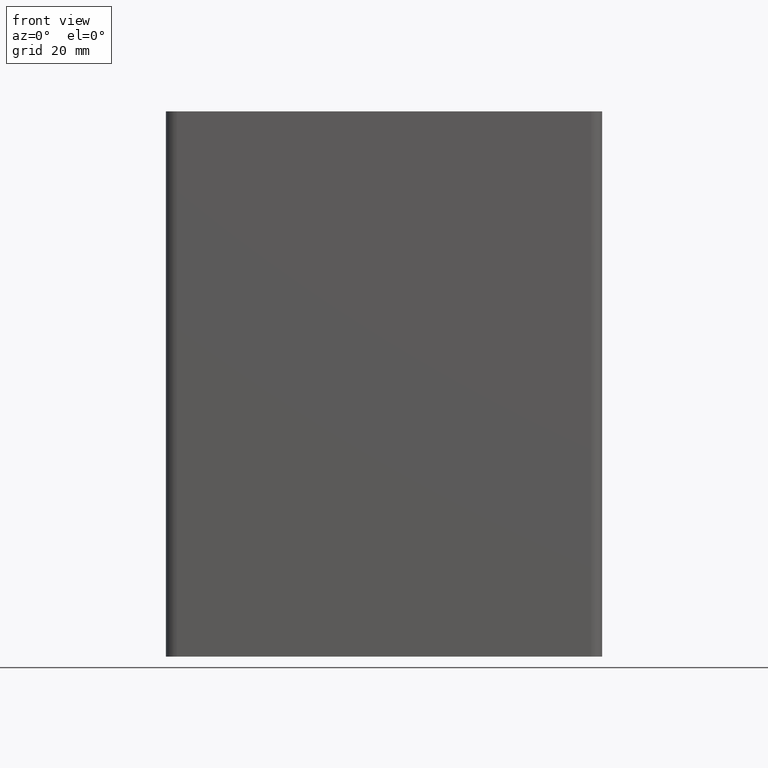
[diagram: clean part render]
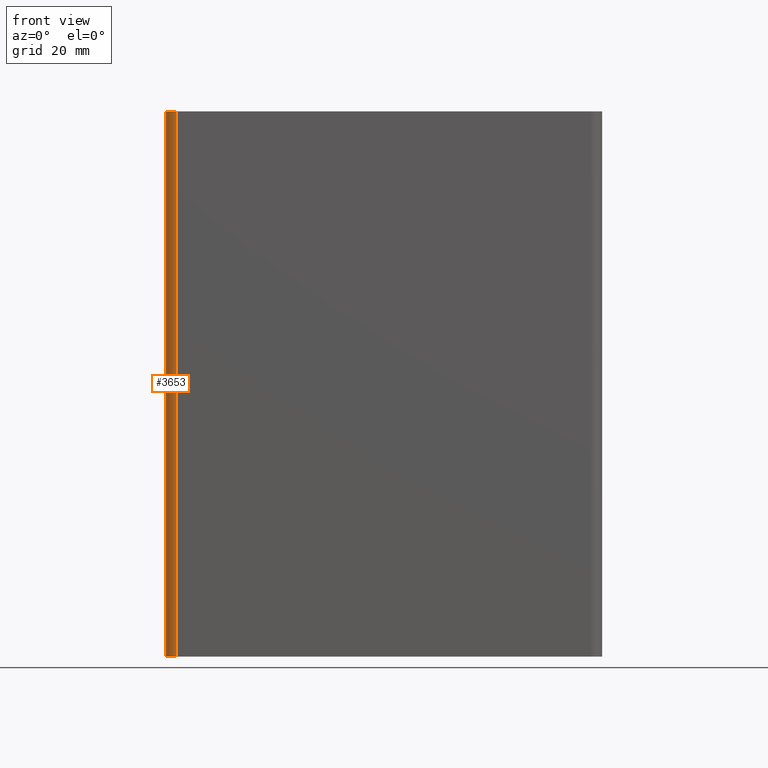
[diagram: same view with one face highlighted and labeled with its STEP entity id]
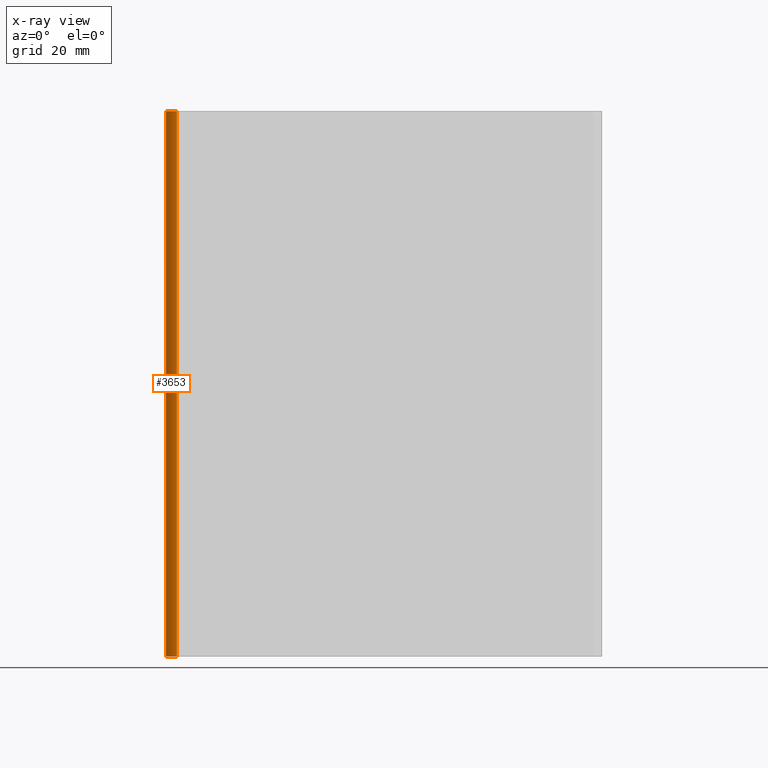
[diagram: x-ray of the same camera — body ghosted, the highlighted face saturated]
A machine part, front view. The second image highlights one B-rep face of the part: STEP entity #3653.
The next image is the same camera in x-ray: the body ghosted, the highlighted face saturated — about 0% of this face is hidden behind the body in this view.
In plain terms, the highlighted cylindrical surface (edge-blend (fillet) strip) has radius 2 mm, axis along (0, 0, 1).
Its self-contained STEP definition (entity closure, byte-faithful):
#305=FACE_OUTER_BOUND('',#499,.T.);
#499=EDGE_LOOP('',(#3183,#3184,#3185,#3186));
#858=LINE('',#6127,#1220);
#871=LINE('',#6160,#1233);
#1220=VECTOR('',#5040,100.);
#1233=VECTOR('',#5073,100.);
#1410=CIRCLE('',#4006,2.00000000000001);
#1413=CIRCLE('',#4010,2.00000000000001);
#1761=VERTEX_POINT('',#6124);
#1762=VERTEX_POINT('',#6126);
#1768=VERTEX_POINT('',#6148);
#1772=VERTEX_POINT('',#6158);
#2286=EDGE_CURVE('',#1761,#1762,#858,.T.);
#2298=EDGE_CURVE('',#1768,#1762,#1410,.T.);
#2303=EDGE_CURVE('',#1772,#1761,#1413,.T.);
#2304=EDGE_CURVE('',#1772,#1768,#871,.T.);
#3183=ORIENTED_EDGE('',*,*,#2298,.T.);
#3184=ORIENTED_EDGE('',*,*,#2286,.F.);
#3185=ORIENTED_EDGE('',*,*,#2303,.F.);
#3186=ORIENTED_EDGE('',*,*,#2304,.T.);
#3475=CYLINDRICAL_SURFACE('',#4009,2.00000000000001);
#3653=ADVANCED_FACE('',(#305),#3475,.T.);
#4006=AXIS2_PLACEMENT_3D('',#6149,#5061,#5062);
#4009=AXIS2_PLACEMENT_3D('',#6157,#5069,#5070);
#4010=AXIS2_PLACEMENT_3D('',#6159,#5071,#5072);
#5040=DIRECTION('',(0.,0.,1.));
#5061=DIRECTION('center_axis',(0.,0.,-1.));
#5062=DIRECTION('ref_axis',(-1.,0.,0.));
#5069=DIRECTION('center_axis',(0.,0.,1.));
#5070=DIRECTION('ref_axis',(-1.,0.,0.));
#5071=DIRECTION('center_axis',(0.,0.,-1.));
#5072=DIRECTION('ref_axis',(-1.,0.,0.));
#5073=DIRECTION('',(0.,0.,1.));
#6124=CARTESIAN_POINT('',(-40.,-18.,0.));
#6126=CARTESIAN_POINT('',(-40.,-18.,100.));
#6127=CARTESIAN_POINT('',(-40.,-18.,0.));
#6148=CARTESIAN_POINT('',(-38.,-20.,100.));
#6149=CARTESIAN_POINT('Origin',(-38.,-18.,100.));
#6157=CARTESIAN_POINT('Origin',(-38.,-18.,0.));
#6158=CARTESIAN_POINT('',(-38.,-20.,0.));
#6159=CARTESIAN_POINT('Origin',(-38.,-18.,0.));
#6160=CARTESIAN_POINT('',(-38.,-20.,0.));